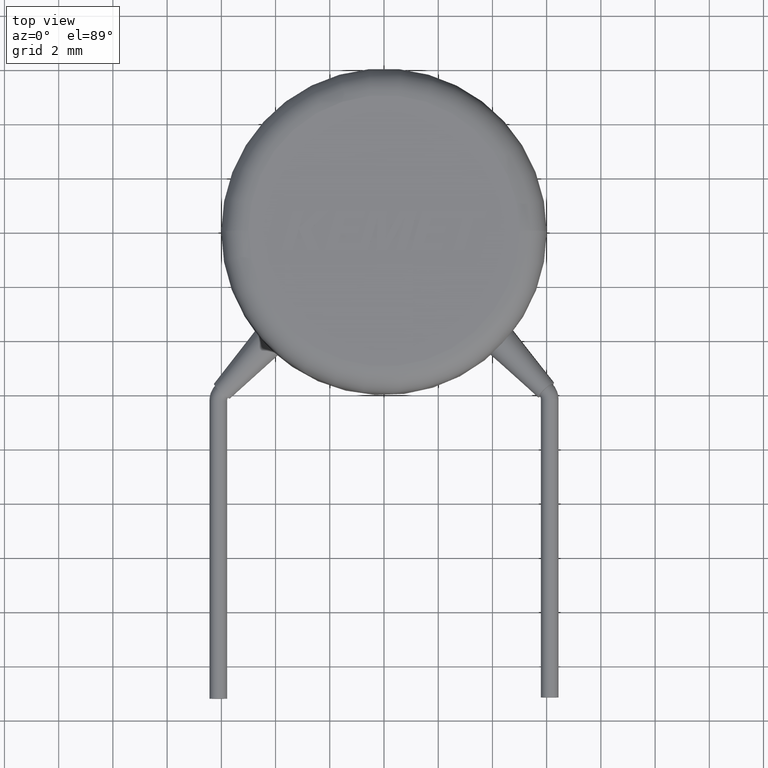
[diagram: clean part render]
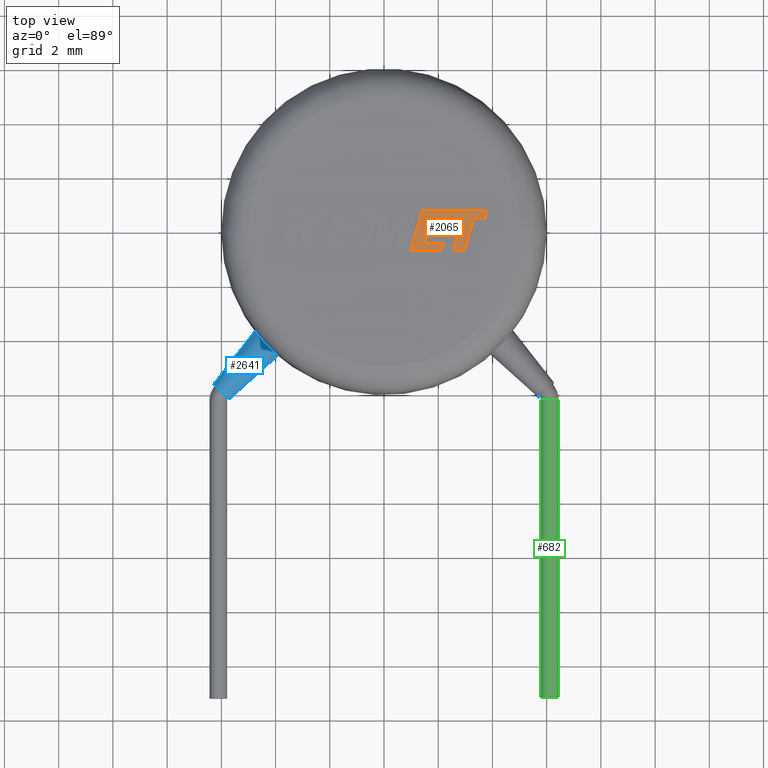
[diagram: same view with three faces highlighted in distinct colors, each labeled with its STEP entity id]
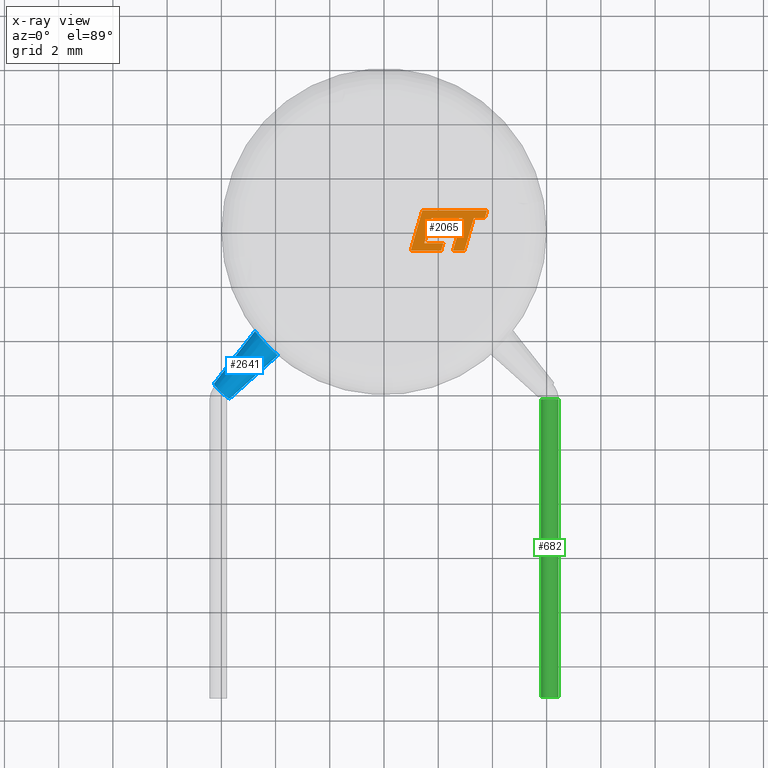
[diagram: x-ray of the same camera — body ghosted, the three highlighted faces saturated]
A machine part, top view with three faces highlighted in distinct colors.
The next image is the same camera in x-ray (body ghosted, the three faces saturated) — at least one of them is partly hidden behind the body in this view.
Their STEP definitions:

[orange] entity #2065 — the highlighted planar face has unit normal (0, 0, 1).
#23 = LINE ( 'NONE', #1389, #3051 ) ;
#44 = LINE ( 'NONE', #841, #3474 ) ;
#65 = EDGE_CURVE ( 'NONE', #2988, #1734, #1383, .T. ) ;
#73 = VERTEX_POINT ( 'NONE', #1729 ) ;
#82 = EDGE_CURVE ( 'NONE', #3695, #2651, #3596, .T. ) ;
#102 = CARTESIAN_POINT ( 'NONE',  ( 2.434514033453667500, 0.4582860059358778700, 5.004999999999999900 ) ) ;
#104 = VERTEX_POINT ( 'NONE', #2912 ) ;
#131 = DIRECTION ( 'NONE',  ( 1.000000000000000000, 4.719463019915355400E-016, 0.0000000000000000000 ) ) ;
#147 = CARTESIAN_POINT ( 'NONE',  ( 2.434514033453667500, 0.4582860059358778700, 5.004999999999999900 ) ) ;
#173 = LINE ( 'NONE', #147, #3201 ) ;
#178 = ORIENTED_EDGE ( 'NONE', *, *, #3396, .T. ) ;
#242 = VECTOR ( 'NONE', #825, 1000.000000000000100 ) ;
#262 = CARTESIAN_POINT ( 'NONE',  ( 2.231975857570661900, -0.09190799817746149500, 5.004999999999999900 ) ) ;
#264 = ORIENTED_EDGE ( 'NONE', *, *, #2217, .T. ) ;
#267 = CARTESIAN_POINT ( 'NONE',  ( 1.752240149599853600, 0.4602054557927483500, 5.004999999999999900 ) ) ;
#275 = DIRECTION ( 'NONE',  ( 1.000000000000000000, 0.0000000000000000000, 0.0000000000000000000 ) ) ;
#301 = LINE ( 'NONE', #1854, #3335 ) ;
#421 = VERTEX_POINT ( 'NONE', #3447 ) ;
#424 = LINE ( 'NONE', #619, #2993 ) ;
#440 = VECTOR ( 'NONE', #131, 1000.000000000000000 ) ;
#520 = LINE ( 'NONE', #1979, #242 ) ;
#549 = ORIENTED_EDGE ( 'NONE', *, *, #1589, .T. ) ;
#589 = CARTESIAN_POINT ( 'NONE',  ( 2.965848537327101300, -0.7451999999999997500, 5.004999999999999900 ) ) ;
#591 = EDGE_CURVE ( 'NONE', #104, #2759, #2735, .T. ) ;
#594 = ORIENTED_EDGE ( 'NONE', *, *, #2307, .T. ) ;
#619 = CARTESIAN_POINT ( 'NONE',  ( 0.9830930517277141100, -0.7452000000000000800, 5.004999999999999900 ) ) ;
#648 = ORIENTED_EDGE ( 'NONE', *, *, #894, .T. ) ;
#692 = ORIENTED_EDGE ( 'NONE', *, *, #1044, .T. ) ;
#718 = DIRECTION ( 'NONE',  ( -1.000000000000000000, 0.0000000000000000000, 0.0000000000000000000 ) ) ;
#730 = VECTOR ( 'NONE', #1521, 1000.000000000000000 ) ;
#806 = CARTESIAN_POINT ( 'NONE',  ( 2.965848537327101300, -0.7451999999999997500, 5.004999999999999900 ) ) ;
#815 = DIRECTION ( 'NONE',  ( 0.2746918797667233200, 0.9615323037684299100, 0.0000000000000000000 ) ) ;
#825 = DIRECTION ( 'NONE',  ( 0.2745159998572792600, 0.9615825319869107900, 0.0000000000000000000 ) ) ;
#829 = CARTESIAN_POINT ( 'NONE',  ( 2.541731605147240700, -0.7451999999999998600, 5.004999999999999900 ) ) ;
#841 = CARTESIAN_POINT ( 'NONE',  ( 2.231975857570661900, -0.09190799817746149500, 5.004999999999999900 ) ) ;
#894 = EDGE_CURVE ( 'NONE', #421, #2988, #3709, .T. ) ;
#896 = CARTESIAN_POINT ( 'NONE',  ( 1.411338613096067700, 0.7436502539244758100, 5.004999999999999900 ) ) ;
#905 = LINE ( 'NONE', #3018, #1737 ) ;
#972 = VERTEX_POINT ( 'NONE', #2235 ) ;
#999 = CARTESIAN_POINT ( 'NONE',  ( 3.311159377289834000, 0.4561809488961899900, 5.004999999999999900 ) ) ;
#1034 = CARTESIAN_POINT ( 'NONE',  ( 2.310591815603286300, 0.1832795439670917000, 5.004999999999999900 ) ) ;
#1044 = EDGE_CURVE ( 'NONE', #2646, #104, #520, .T. ) ;
#1097 = VERTEX_POINT ( 'NONE', #1707 ) ;
#1154 = CARTESIAN_POINT ( 'NONE',  ( 1.593134053722072400, -0.09190799817746149500, 5.004999999999999900 ) ) ;
#1155 = LINE ( 'NONE', #589, #2207 ) ;
#1173 = VECTOR ( 'NONE', #2497, 1000.000000000000100 ) ;
#1285 = VECTOR ( 'NONE', #2588, 999.9999999999998900 ) ;
#1291 = DIRECTION ( 'NONE',  ( 0.0000000000000000000, 0.0000000000000000000, 1.000000000000000000 ) ) ;
#1325 = DIRECTION ( 'NONE',  ( 0.9999891854650020400, -0.004650693823677885500, 0.0000000000000000000 ) ) ;
#1329 = DIRECTION ( 'NONE',  ( -1.000000000000000000, 0.0000000000000000000, 0.0000000000000000000 ) ) ;
#1336 = FACE_OUTER_BOUND ( 'NONE', #2929, .T. ) ;
#1372 = VECTOR ( 'NONE', #3058, 1000.000000000000100 ) ;
#1383 = LINE ( 'NONE', #1747, #1285 ) ;
#1389 = CARTESIAN_POINT ( 'NONE',  ( 3.718792836980295400, 0.4561485874989545900, 5.004999999999999900 ) ) ;
#1398 = VERTEX_POINT ( 'NONE', #102 ) ;
#1440 = CARTESIAN_POINT ( 'NONE',  ( 1.752240149599853600, 0.4602054557927483500, 5.004999999999999900 ) ) ;
#1494 = VECTOR ( 'NONE', #275, 1000.000000000000000 ) ;
#1511 = LINE ( 'NONE', #2679, #730 ) ;
#1515 = DIRECTION ( 'NONE',  ( 1.000000000000000000, 8.897046291125913300E-017, 0.0000000000000000000 ) ) ;
#1521 = DIRECTION ( 'NONE',  ( -1.000000000000000000, -1.557889069115217100E-016, 0.0000000000000000000 ) ) ;
#1589 = EDGE_CURVE ( 'NONE', #2759, #421, #44, .T. ) ;
#1707 = CARTESIAN_POINT ( 'NONE',  ( 3.718792836980295400, 0.4561485874989545900, 5.004999999999999900 ) ) ;
#1729 = CARTESIAN_POINT ( 'NONE',  ( 3.801415844632267700, 0.7436502539244762600, 5.004999999999999900 ) ) ;
#1734 = VERTEX_POINT ( 'NONE', #267 ) ;
#1737 = VECTOR ( 'NONE', #718, 1000.000000000000000 ) ;
#1743 = ORIENTED_EDGE ( 'NONE', *, *, #3444, .T. ) ;
#1747 = CARTESIAN_POINT ( 'NONE',  ( 1.671659471667112300, 0.1832795439670917000, 5.004999999999999900 ) ) ;
#1757 = EDGE_CURVE ( 'NONE', #73, #3472, #1511, .T. ) ;
#1789 = DIRECTION ( 'NONE',  ( -0.2763173343569910200, -0.9610664548998922900, 0.0000000000000000000 ) ) ;
#1824 = AXIS2_PLACEMENT_3D ( 'NONE', #3041, #1291, #3325 ) ;
#1835 = EDGE_CURVE ( 'NONE', #2366, #2646, #905, .T. ) ;
#1854 = CARTESIAN_POINT ( 'NONE',  ( 2.107963099632962600, -0.7451999999999998600, 5.004999999999999900 ) ) ;
#1860 = EDGE_CURVE ( 'NONE', #972, #2366, #301, .T. ) ;
#1865 = CARTESIAN_POINT ( 'NONE',  ( 1.411338613096067700, 0.7436502539244758100, 5.004999999999999900 ) ) ;
#1887 = CARTESIAN_POINT ( 'NONE',  ( 2.541731605147240700, -0.7451999999999998600, 5.004999999999999900 ) ) ;
#1979 = CARTESIAN_POINT ( 'NONE',  ( 1.487509987568871800, -0.4618910120023428900, 5.004999999999999900 ) ) ;
#1995 = LINE ( 'NONE', #1887, #440 ) ;
#2065 = ADVANCED_FACE ( 'NONE', ( #1336 ), #3572, .T. ) ;
#2144 = VECTOR ( 'NONE', #1789, 1000.000000000000200 ) ;
#2191 = ORIENTED_EDGE ( 'NONE', *, *, #2820, .T. ) ;
#2198 = VERTEX_POINT ( 'NONE', #3670 ) ;
#2207 = VECTOR ( 'NONE', #2599, 1000.000000000000100 ) ;
#2217 = EDGE_CURVE ( 'NONE', #1398, #3695, #173, .T. ) ;
#2220 = LINE ( 'NONE', #999, #1173 ) ;
#2235 = CARTESIAN_POINT ( 'NONE',  ( 2.107963099632962600, -0.7451999999999998600, 5.004999999999999900 ) ) ;
#2273 = ORIENTED_EDGE ( 'NONE', *, *, #1757, .T. ) ;
#2307 = EDGE_CURVE ( 'NONE', #3479, #1097, #2220, .T. ) ;
#2326 = ORIENTED_EDGE ( 'NONE', *, *, #65, .T. ) ;
#2332 = CARTESIAN_POINT ( 'NONE',  ( 3.311159377289834000, 0.4561809488961899900, 5.004999999999999900 ) ) ;
#2366 = VERTEX_POINT ( 'NONE', #2397 ) ;
#2397 = CARTESIAN_POINT ( 'NONE',  ( 2.188353643381590900, -0.4618910120023428900, 5.004999999999999900 ) ) ;
#2497 = DIRECTION ( 'NONE',  ( 0.9999999968487352000, -7.938847109813126900E-005, 0.0000000000000000000 ) ) ;
#2558 = EDGE_CURVE ( 'NONE', #3472, #2198, #2680, .T. ) ;
#2588 = DIRECTION ( 'NONE',  ( 0.2793947940814928100, 0.9601763114346033600, 0.0000000000000000000 ) ) ;
#2599 = DIRECTION ( 'NONE',  ( 0.2762437428917331500, 0.9610876102172819500, 0.0000000000000000000 ) ) ;
#2606 = EDGE_CURVE ( 'NONE', #2651, #3568, #1995, .T. ) ;
#2617 = VECTOR ( 'NONE', #3202, 999.9999999999998900 ) ;
#2646 = VERTEX_POINT ( 'NONE', #3180 ) ;
#2651 = VERTEX_POINT ( 'NONE', #829 ) ;
#2666 = LINE ( 'NONE', #1440, #2617 ) ;
#2673 = VECTOR ( 'NONE', #1329, 1000.000000000000000 ) ;
#2679 = CARTESIAN_POINT ( 'NONE',  ( 3.801415844632267700, 0.7436502539244762600, 5.004999999999999900 ) ) ;
#2680 = LINE ( 'NONE', #1865, #1372 ) ;
#2735 = LINE ( 'NONE', #1154, #1494 ) ;
#2759 = VERTEX_POINT ( 'NONE', #262 ) ;
#2771 = ORIENTED_EDGE ( 'NONE', *, *, #3536, .T. ) ;
#2820 = EDGE_CURVE ( 'NONE', #1097, #73, #23, .T. ) ;
#2846 = ORIENTED_EDGE ( 'NONE', *, *, #2558, .T. ) ;
#2883 = ORIENTED_EDGE ( 'NONE', *, *, #2606, .T. ) ;
#2912 = CARTESIAN_POINT ( 'NONE',  ( 1.593134053722072400, -0.09190799817746149500, 5.004999999999999900 ) ) ;
#2929 = EDGE_LOOP ( 'NONE', ( #1743, #264, #3122, #2883, #178, #594, #2191, #2273, #2846, #2771, #3512, #3145, #692, #3682, #549, #648, #2326 ) ) ;
#2988 = VERTEX_POINT ( 'NONE', #3352 ) ;
#2993 = VECTOR ( 'NONE', #1515, 1000.000000000000000 ) ;
#3018 = CARTESIAN_POINT ( 'NONE',  ( 2.188353643381590900, -0.4618910120023428900, 5.004999999999999900 ) ) ;
#3041 = CARTESIAN_POINT ( 'NONE',  ( -0.0001286296256032375100, -0.0007872849118645318700, 5.004999999999999900 ) ) ;
#3051 = VECTOR ( 'NONE', #3705, 1000.000000000000000 ) ;
#3058 = DIRECTION ( 'NONE',  ( -0.2764273280489749100, -0.9610348236706640600, 0.0000000000000000000 ) ) ;
#3080 = DIRECTION ( 'NONE',  ( 0.2729786930695122200, 0.9620200793798748800, 0.0000000000000000000 ) ) ;
#3122 = ORIENTED_EDGE ( 'NONE', *, *, #82, .T. ) ;
#3145 = ORIENTED_EDGE ( 'NONE', *, *, #1835, .T. ) ;
#3159 = CARTESIAN_POINT ( 'NONE',  ( 2.887142039207043700, 0.4561809488998840300, 5.004999999999999900 ) ) ;
#3180 = CARTESIAN_POINT ( 'NONE',  ( 1.487509987568871800, -0.4618910120023428900, 5.004999999999999900 ) ) ;
#3201 = VECTOR ( 'NONE', #1325, 1000.000000000000200 ) ;
#3202 = DIRECTION ( 'NONE',  ( 0.9999960426590096500, -0.002813301676023211200, 0.0000000000000000000 ) ) ;
#3259 = CARTESIAN_POINT ( 'NONE',  ( 2.887142039207043700, 0.4561809488998840300, 5.004999999999999900 ) ) ;
#3325 = DIRECTION ( 'NONE',  ( 1.000000000000000000, 0.0000000000000000000, 0.0000000000000000000 ) ) ;
#3335 = VECTOR ( 'NONE', #3080, 1000.000000000000200 ) ;
#3352 = CARTESIAN_POINT ( 'NONE',  ( 1.671659471667112300, 0.1832795439670917000, 5.004999999999999900 ) ) ;
#3396 = EDGE_CURVE ( 'NONE', #3568, #3479, #1155, .T. ) ;
#3444 = EDGE_CURVE ( 'NONE', #1734, #1398, #2666, .T. ) ;
#3447 = CARTESIAN_POINT ( 'NONE',  ( 2.310591815603286300, 0.1832795439670917000, 5.004999999999999900 ) ) ;
#3472 = VERTEX_POINT ( 'NONE', #896 ) ;
#3474 = VECTOR ( 'NONE', #815, 1000.000000000000000 ) ;
#3479 = VERTEX_POINT ( 'NONE', #2332 ) ;
#3512 = ORIENTED_EDGE ( 'NONE', *, *, #1860, .T. ) ;
#3536 = EDGE_CURVE ( 'NONE', #2198, #972, #424, .T. ) ;
#3568 = VERTEX_POINT ( 'NONE', #806 ) ;
#3572 = PLANE ( 'NONE',  #1824 ) ;
#3596 = LINE ( 'NONE', #3159, #2144 ) ;
#3670 = CARTESIAN_POINT ( 'NONE',  ( 0.9830930517277141100, -0.7452000000000000800, 5.004999999999999900 ) ) ;
#3682 = ORIENTED_EDGE ( 'NONE', *, *, #591, .T. ) ;
#3695 = VERTEX_POINT ( 'NONE', #3259 ) ;
#3705 = DIRECTION ( 'NONE',  ( 0.2762033010288859600, 0.9610992334305269400, 0.0000000000000000000 ) ) ;
#3709 = LINE ( 'NONE', #1034, #2673 ) ;

[blue] entity #2641 — the highlighted conical surface has half-angle 5 deg.
#56 = ORIENTED_EDGE ( 'NONE', *, *, #1444, .F. ) ;
#60 = CIRCLE ( 'NONE', #2185, 0.4000000000000006900 ) ;
#91 = CARTESIAN_POINT ( 'NONE',  ( -4.761523775114033800, -3.650738464889796500, 1.583154931256750600 ) ) ;
#186 = CARTESIAN_POINT ( 'NONE',  ( -5.977927896756229500, -5.855073999850296800, 1.228788100669717200 ) ) ;
#217 = CARTESIAN_POINT ( 'NONE',  ( -4.134712148252082100, -4.349386552393892400, 2.127660817823514800 ) ) ;
#485 = CARTESIAN_POINT ( 'NONE',  ( -3.919113441514549700, -4.543187188806994600, 1.571959117164562600 ) ) ;
#516 = CARTESIAN_POINT ( 'NONE',  ( -3.917572670778714200, -4.544516311964412300, 1.733181770282316900 ) ) ;
#710 = CONICAL_SURFACE ( 'NONE', #1157, 0.4000000000000006900, 0.08726646259971651600 ) ;
#736 = DIRECTION ( 'NONE',  ( 0.6755424526749135300, 0.7231913397140649100, 0.1436547277208039800 ) ) ;
#824 = EDGE_LOOP ( 'NONE', ( #1014, #56, #3608, #1690 ) ) ;
#1014 = ORIENTED_EDGE ( 'NONE', *, *, #3613, .F. ) ;
#1073 = EDGE_CURVE ( 'NONE', #2241, #3141, #3260, .T. ) ;
#1107 = CARTESIAN_POINT ( 'NONE',  ( -4.471879461428114800, -4.003545165798009000, 2.198691831556094800 ) ) ;
#1157 = AXIS2_PLACEMENT_3D ( 'NONE', #186, #736, #1722 ) ;
#1191 = CARTESIAN_POINT ( 'NONE',  ( -6.270236293611375800, -5.582024917947474100, 1.228788100669717200 ) ) ;
#1403 = CARTESIAN_POINT ( 'NONE',  ( -5.685619499901082300, -6.128123081753120300, 1.228788100669717200 ) ) ;
#1444 = EDGE_CURVE ( 'NONE', #2192, #3089, #60, .T. ) ;
#1492 = FACE_OUTER_BOUND ( 'NONE', #824, .T. ) ;
#1572 = LINE ( 'NONE', #1191, #2164 ) ;
#1648 = CARTESIAN_POINT ( 'NONE',  ( -3.919113441514549700, -4.543187188806994600, 1.571959117164562600 ) ) ;
#1690 = ORIENTED_EDGE ( 'NONE', *, *, #1073, .T. ) ;
#1695 = CARTESIAN_POINT ( 'NONE',  ( -4.715162061955783000, -3.710551136993063300, 1.895323851387209900 ) ) ;
#1722 = DIRECTION ( 'NONE',  ( 0.7307709921378653400, -0.6826227047570566600, 0.0000000000000000000 ) ) ;
#1914 = CARTESIAN_POINT ( 'NONE',  ( -5.685619499901082300, -6.128123081753120300, 1.228788100669717200 ) ) ;
#1988 = CARTESIAN_POINT ( 'NONE',  ( -4.761523775114033800, -3.650738464889796500, 1.583154931256750600 ) ) ;
#2125 = LINE ( 'NONE', #1403, #3751 ) ;
#2164 = VECTOR ( 'NONE', #2913, 1000.000000000000100 ) ;
#2184 = CARTESIAN_POINT ( 'NONE',  ( -5.977927896756229500, -5.855073999850296800, 1.228788100669717200 ) ) ;
#2185 = AXIS2_PLACEMENT_3D ( 'NONE', #2184, #2475, #2723 ) ;
#2192 = VERTEX_POINT ( 'NONE', #1914 ) ;
#2241 = VERTEX_POINT ( 'NONE', #1648 ) ;
#2475 = DIRECTION ( 'NONE',  ( -0.6755424526749135300, -0.7231913397140649100, -0.1436547277208039800 ) ) ;
#2556 = CARTESIAN_POINT ( 'NONE',  ( -4.250046847073583900, -4.238299377085943400, 2.195093563552882500 ) ) ;
#2641 = ADVANCED_FACE ( 'NONE', ( #1492 ), #710, .T. ) ;
#2723 = DIRECTION ( 'NONE',  ( 0.7307709921378653400, -0.6826227047570566600, 0.0000000000000000000 ) ) ;
#2802 = EDGE_CURVE ( 'NONE', #2192, #2241, #2125, .T. ) ;
#2841 = CARTESIAN_POINT ( 'NONE',  ( -4.577835784070774800, -3.880282038320888900, 2.133860007861350500 ) ) ;
#2913 = DIRECTION ( 'NONE',  ( 0.6092809210924238200, 0.7799338671785344100, 0.1431080781112782400 ) ) ;
#3015 = CARTESIAN_POINT ( 'NONE',  ( -6.270236293611375800, -5.582024917947474100, 1.228788100669717200 ) ) ;
#3089 = VERTEX_POINT ( 'NONE', #3015 ) ;
#3141 = VERTEX_POINT ( 'NONE', #91 ) ;
#3187 = DIRECTION ( 'NONE',  ( 0.7366626982888614400, 0.6609448894795012500, 0.1431080781112782400 ) ) ;
#3260 = B_SPLINE_CURVE_WITH_KNOTS ( 'NONE', 3,
 ( #485, #516, #3429, #217, #2556, #1107, #2841, #3443, #1695, #3456, #3719, #1988 ),
 .UNSPECIFIED., .F., .F.,
 ( 4, 2, 2, 2, 2, 4 ),
 ( 0.0007422744442553735000, 0.001225630688337655000, 0.001708986932419936400, 0.002192343176502218000, 0.002434021298543359100, 0.002675699420584500500 ),
 .UNSPECIFIED. ) ;
#3429 = CARTESIAN_POINT ( 'NONE',  ( -3.966432412034310000, -4.503378937177272300, 1.894757841638564400 ) ) ;
#3443 = CARTESIAN_POINT ( 'NONE',  ( -4.686606422173246900, -3.746867029179617300, 1.963998386896042200 ) ) ;
#3456 = CARTESIAN_POINT ( 'NONE',  ( -4.752895843811231200, -3.662092859094313800, 1.745417958565961500 ) ) ;
#3608 = ORIENTED_EDGE ( 'NONE', *, *, #2802, .T. ) ;
#3613 = EDGE_CURVE ( 'NONE', #3089, #3141, #1572, .T. ) ;
#3719 = CARTESIAN_POINT ( 'NONE',  ( -4.762166329047716800, -3.649900405449907100, 1.664836712036480600 ) ) ;
#3751 = VECTOR ( 'NONE', #3187, 1000.000000000000100 ) ;

[green] entity #682 — the highlighted cylindrical surface (edge-blend (fillet) strip) has radius 0.325 mm, axis along (0, -1, 0).
#215 = LINE ( 'NONE', #2170, #1961 ) ;
#362 = CARTESIAN_POINT ( 'NONE',  ( 6.113305161694457400, -17.20039786456376500, 3.799999999999979400 ) ) ;
#407 = VERTEX_POINT ( 'NONE', #1414 ) ;
#482 = VERTEX_POINT ( 'NONE', #2545 ) ;
#558 = AXIS2_PLACEMENT_3D ( 'NONE', #559, #1772, #3231 ) ;
#559 = CARTESIAN_POINT ( 'NONE',  ( 6.113305161694456500, -6.200397864563762500, 3.799999999999979000 ) ) ;
#582 = VERTEX_POINT ( 'NONE', #1123 ) ;
#682 = ADVANCED_FACE ( 'NONE', ( #1861 ), #2790, .T. ) ;
#934 = CARTESIAN_POINT ( 'NONE',  ( 6.113305161694456500, -6.200397864563762500, 3.799999999999979000 ) ) ;
#963 = ORIENTED_EDGE ( 'NONE', *, *, #3400, .F. ) ;
#1006 = DIRECTION ( 'NONE',  ( 7.885106708985486600E-017, -1.000000000000000000, 3.942553354492743300E-017 ) ) ;
#1052 = VERTEX_POINT ( 'NONE', #1997 ) ;
#1100 = VERTEX_POINT ( 'NONE', #2871 ) ;
#1114 = VECTOR ( 'NONE', #3271, 1000.000000000000000 ) ;
#1123 = CARTESIAN_POINT ( 'NONE',  ( 5.788305161694456300, -6.200397864563762500, 3.799999999999979000 ) ) ;
#1163 = EDGE_CURVE ( 'NONE', #1052, #1100, #2119, .T. ) ;
#1232 = DIRECTION ( 'NONE',  ( 0.9983794727490115100, 0.0000000000000000000, 0.05690719105179748600 ) ) ;
#1277 = DIRECTION ( 'NONE',  ( 0.9983794727490115100, 0.0000000000000000000, 0.05690719105179748600 ) ) ;
#1396 = AXIS2_PLACEMENT_3D ( 'NONE', #934, #3013, #1277 ) ;
#1414 = CARTESIAN_POINT ( 'NONE',  ( 6.438305161694458400, -17.20039786456376500, 3.799999999999979000 ) ) ;
#1525 = LINE ( 'NONE', #2734, #1114 ) ;
#1600 = AXIS2_PLACEMENT_3D ( 'NONE', #2400, #2450, #2461 ) ;
#1772 = DIRECTION ( 'NONE',  ( 4.475586568020163300E-016, -1.000000000000000000, 2.775557561562892000E-017 ) ) ;
#1776 = CIRCLE ( 'NONE', #1396, 0.3250000000000001800 ) ;
#1861 = FACE_OUTER_BOUND ( 'NONE', #2982, .T. ) ;
#1961 = VECTOR ( 'NONE', #1006, 1000.000000000000000 ) ;
#1997 = CARTESIAN_POINT ( 'NONE',  ( 6.438305161694457500, -6.200397864563762500, 3.799999999999979000 ) ) ;
#2023 = EDGE_CURVE ( 'NONE', #582, #482, #215, .T. ) ;
#2113 = EDGE_CURVE ( 'NONE', #1100, #582, #1776, .T. ) ;
#2119 = CIRCLE ( 'NONE', #558, 0.3250000000000001800 ) ;
#2170 = CARTESIAN_POINT ( 'NONE',  ( 5.788305161694456300, -6.200397864563762500, 3.799999999999979000 ) ) ;
#2196 = ORIENTED_EDGE ( 'NONE', *, *, #2023, .T. ) ;
#2400 = CARTESIAN_POINT ( 'NONE',  ( 6.113305161694456500, -6.200397864563762500, 3.799999999999979000 ) ) ;
#2450 = DIRECTION ( 'NONE',  ( 7.885106708985486600E-017, -1.000000000000000000, 3.942553354492743300E-017 ) ) ;
#2461 = DIRECTION ( 'NONE',  ( 1.000000000000000000, 0.0000000000000000000, 0.0000000000000000000 ) ) ;
#2545 = CARTESIAN_POINT ( 'NONE',  ( 5.788305161694457200, -17.20039786456376500, 3.799999999999979000 ) ) ;
#2615 = AXIS2_PLACEMENT_3D ( 'NONE', #362, #2978, #1232 ) ;
#2734 = CARTESIAN_POINT ( 'NONE',  ( 6.438305161694457500, -6.200397864563762500, 3.799999999999979000 ) ) ;
#2790 = CYLINDRICAL_SURFACE ( 'NONE', #1600, 0.3250000000000006200 ) ;
#2828 = ORIENTED_EDGE ( 'NONE', *, *, #1163, .T. ) ;
#2871 = CARTESIAN_POINT ( 'NONE',  ( 6.431197030102569400, -6.200397864563762500, 3.867599999999977300 ) ) ;
#2978 = DIRECTION ( 'NONE',  ( 4.475586568020163300E-016, -1.000000000000000000, 2.775557561562892000E-017 ) ) ;
#2982 = EDGE_LOOP ( 'NONE', ( #2828, #2991, #2196, #963, #3740 ) ) ;
#2991 = ORIENTED_EDGE ( 'NONE', *, *, #2113, .T. ) ;
#3013 = DIRECTION ( 'NONE',  ( 4.475586568020163300E-016, -1.000000000000000000, 2.775557561562892000E-017 ) ) ;
#3185 = CIRCLE ( 'NONE', #2615, 0.3250000000000001800 ) ;
#3231 = DIRECTION ( 'NONE',  ( 0.9983794727490115100, 0.0000000000000000000, 0.05690719105179748600 ) ) ;
#3271 = DIRECTION ( 'NONE',  ( 7.885106708985486600E-017, -1.000000000000000000, 3.942553354492743300E-017 ) ) ;
#3400 = EDGE_CURVE ( 'NONE', #407, #482, #3185, .T. ) ;
#3529 = EDGE_CURVE ( 'NONE', #1052, #407, #1525, .T. ) ;
#3740 = ORIENTED_EDGE ( 'NONE', *, *, #3529, .F. ) ;